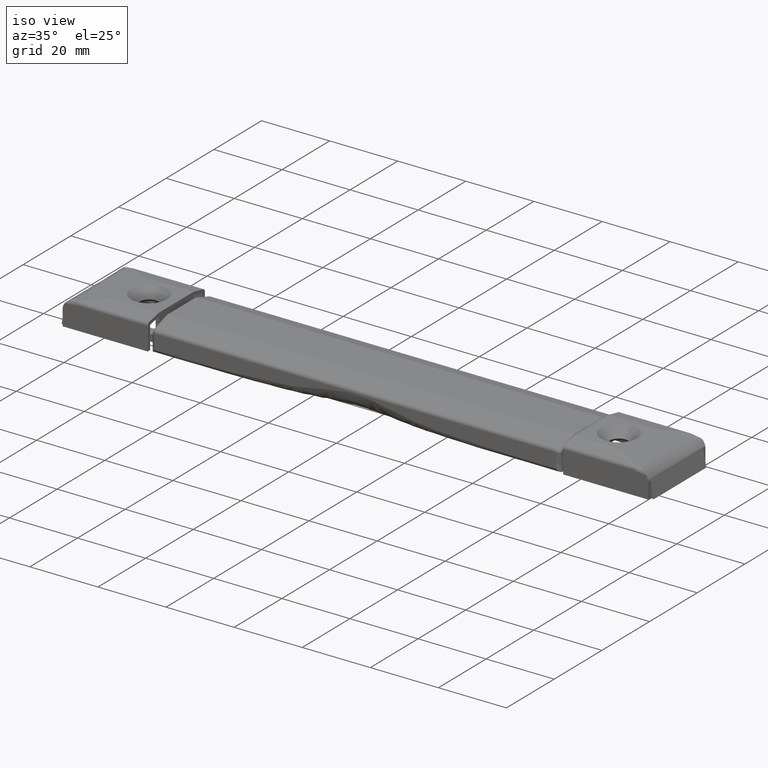
[diagram: clean part render]
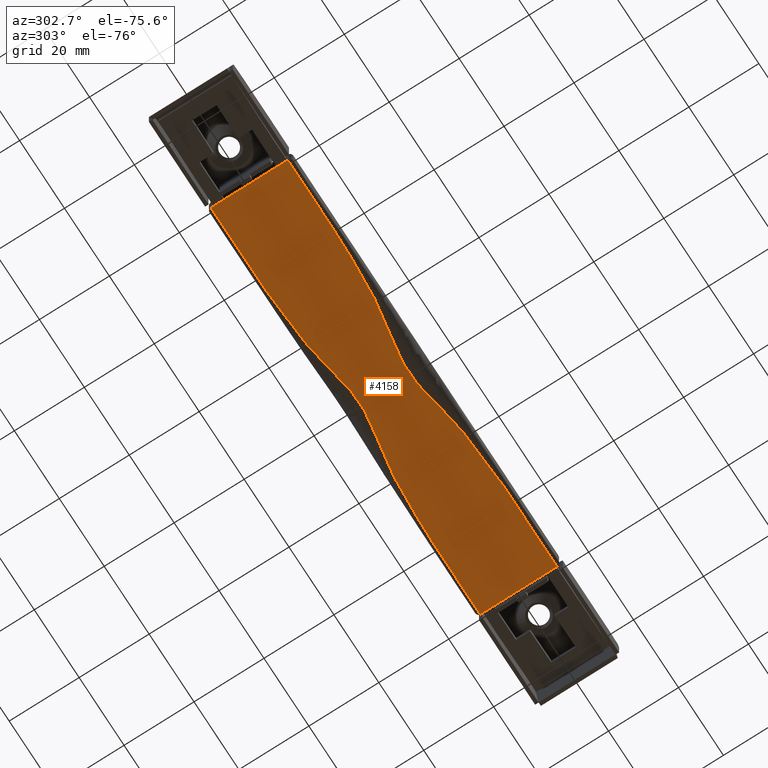
[diagram: tour spotlight — one face highlighted and labeled with its STEP entity id]
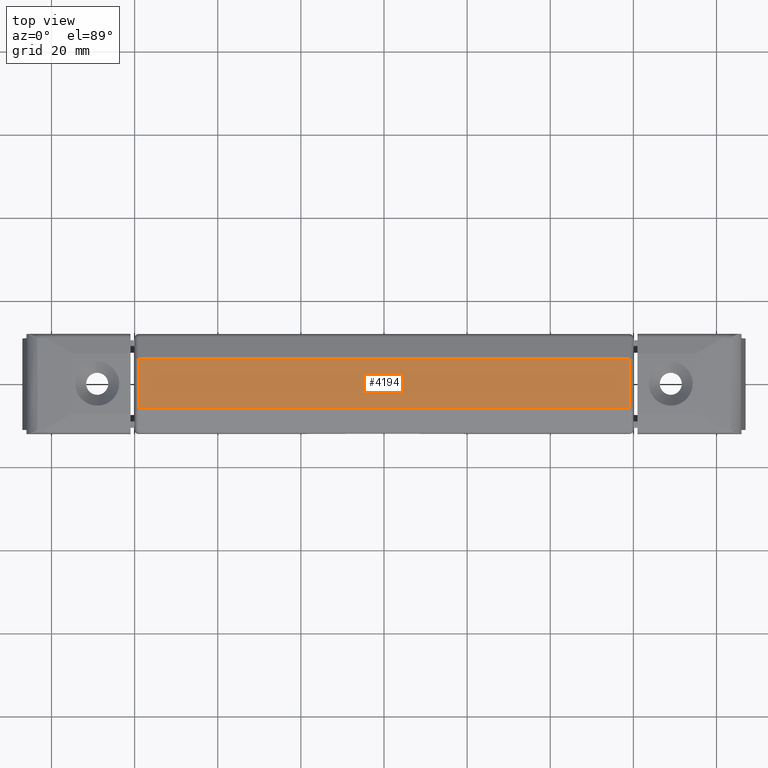
[diagram: tour spotlight — one face highlighted and labeled with its STEP entity id]
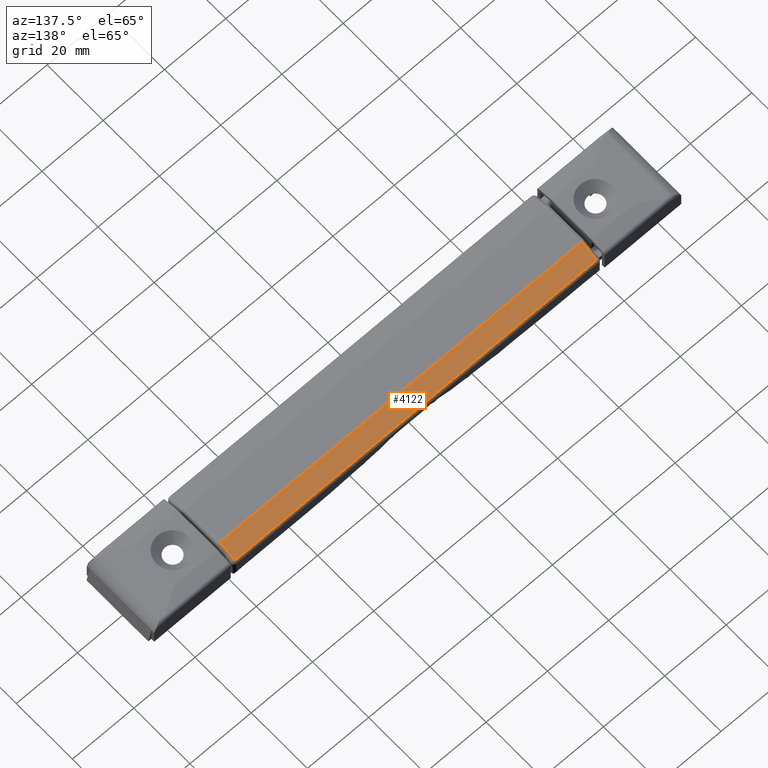
[diagram: tour spotlight — one face highlighted and labeled with its STEP entity id]
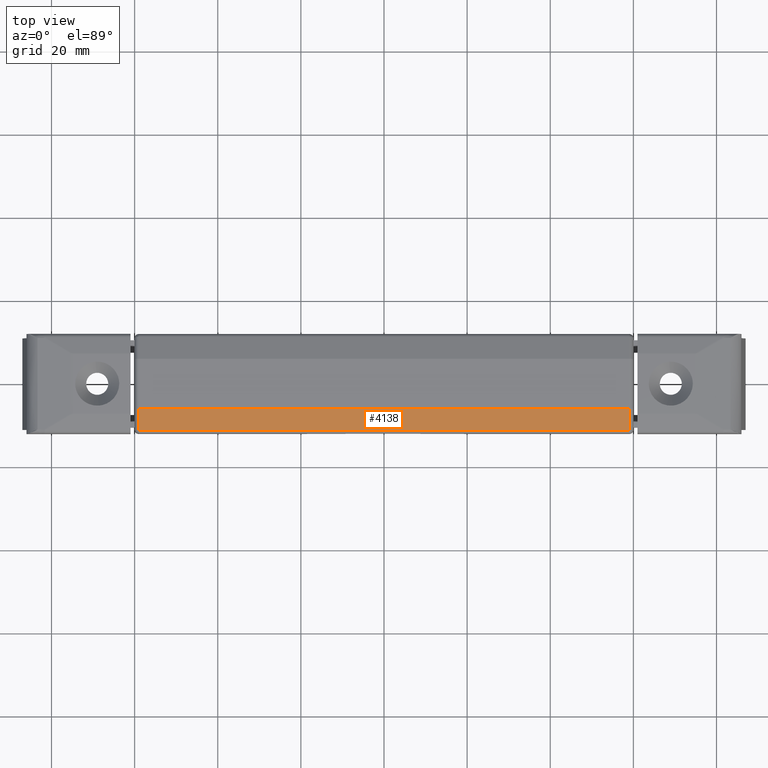
[diagram: tour spotlight — one face highlighted and labeled with its STEP entity id]
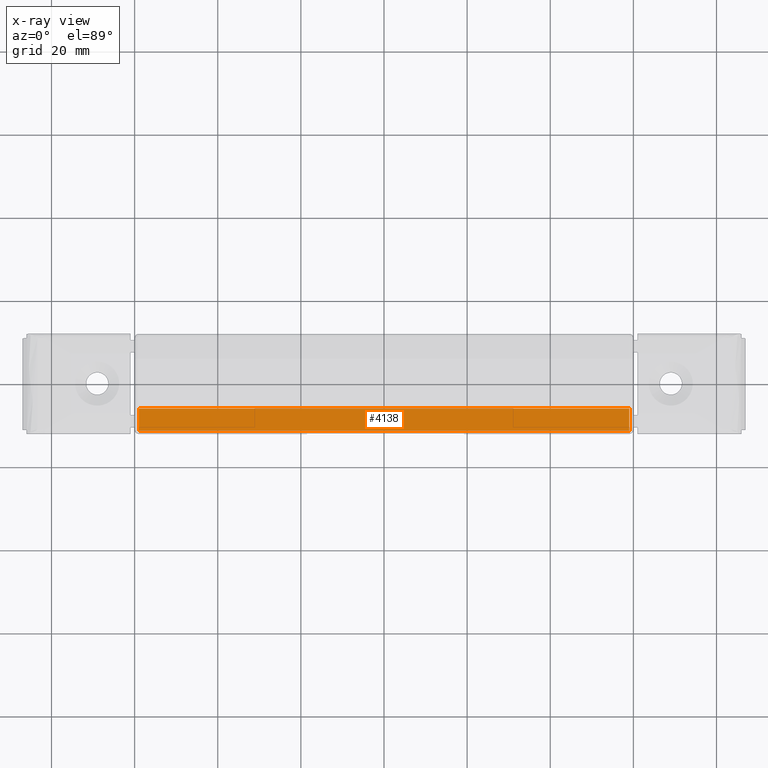
[diagram: x-ray of the same camera — body ghosted, this tour face saturated]
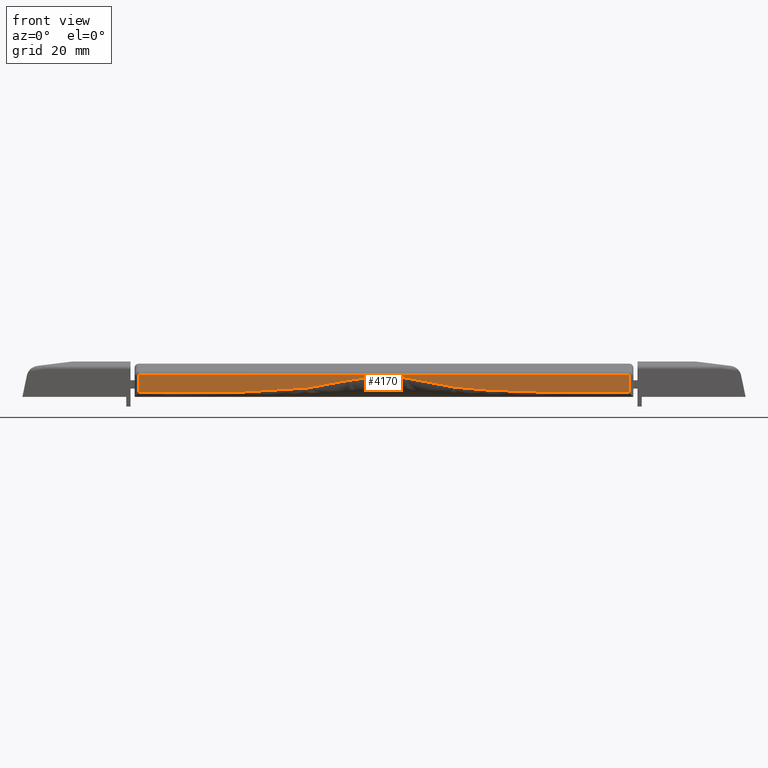
[diagram: tour spotlight — one face highlighted and labeled with its STEP entity id]
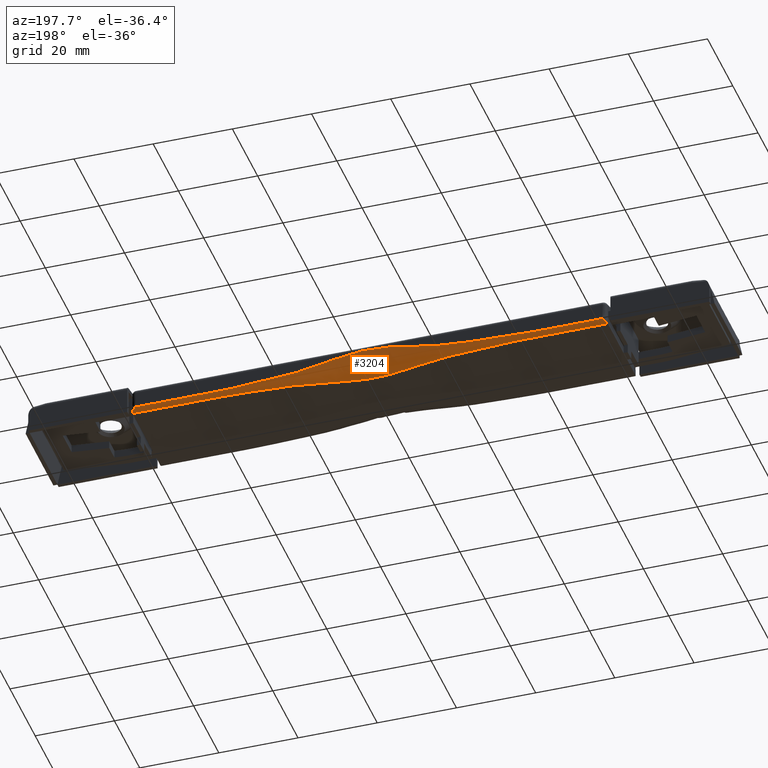
[diagram: tour spotlight — one face highlighted and labeled with its STEP entity id]
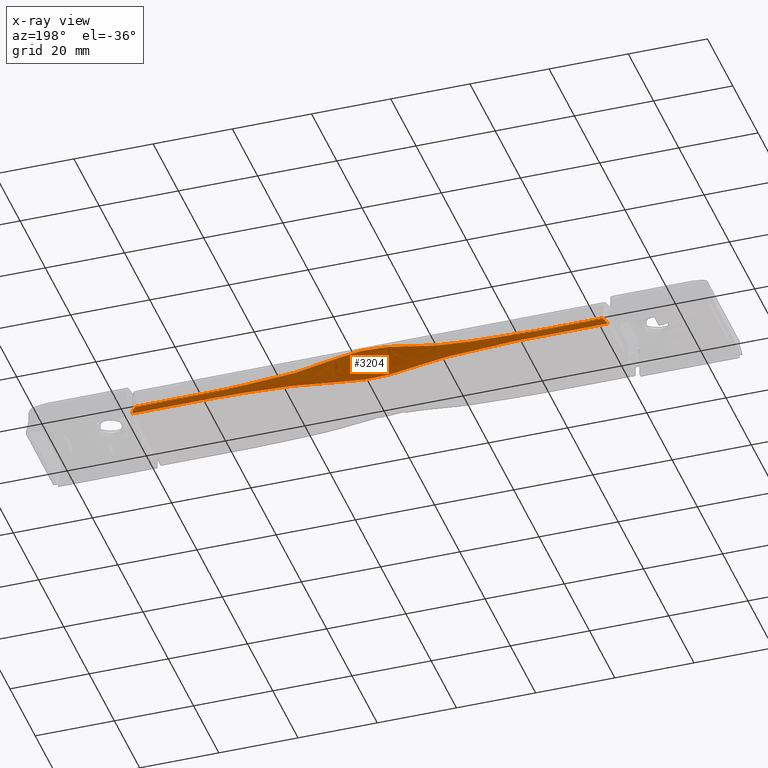
[diagram: x-ray of the same camera — body ghosted, this tour face saturated]
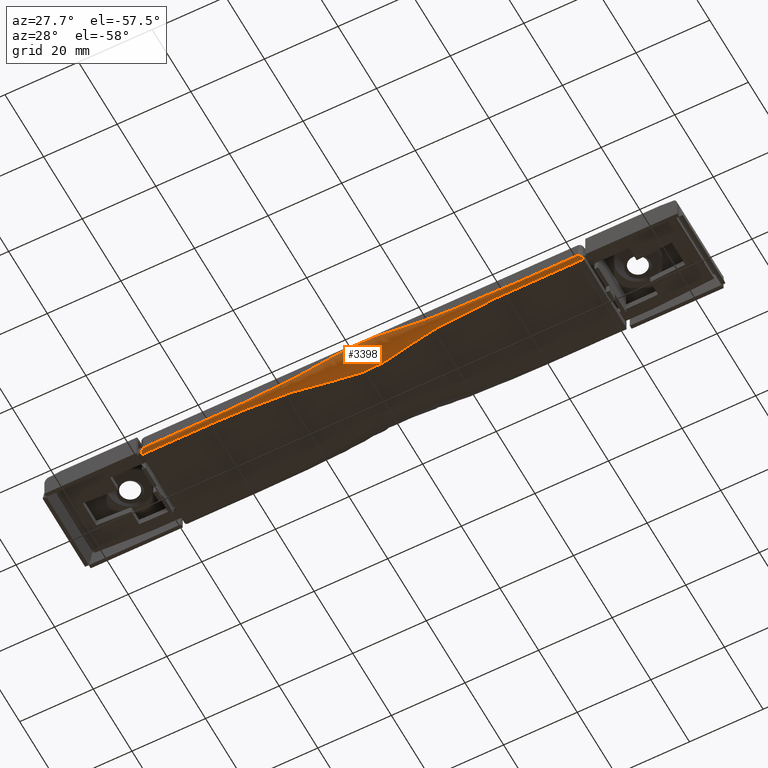
[diagram: tour spotlight — one face highlighted and labeled with its STEP entity id]
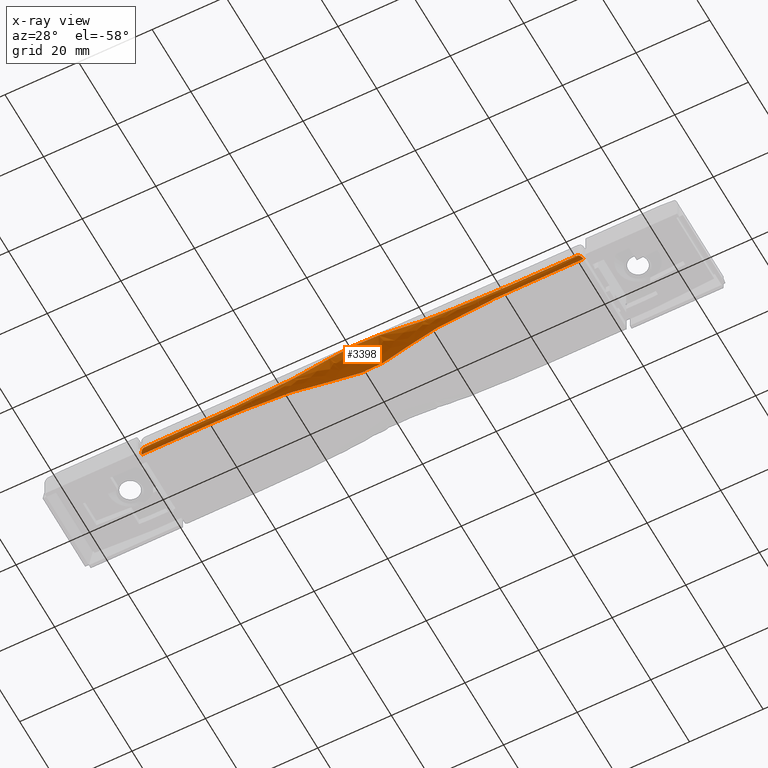
[diagram: x-ray of the same camera — body ghosted, this tour face saturated]
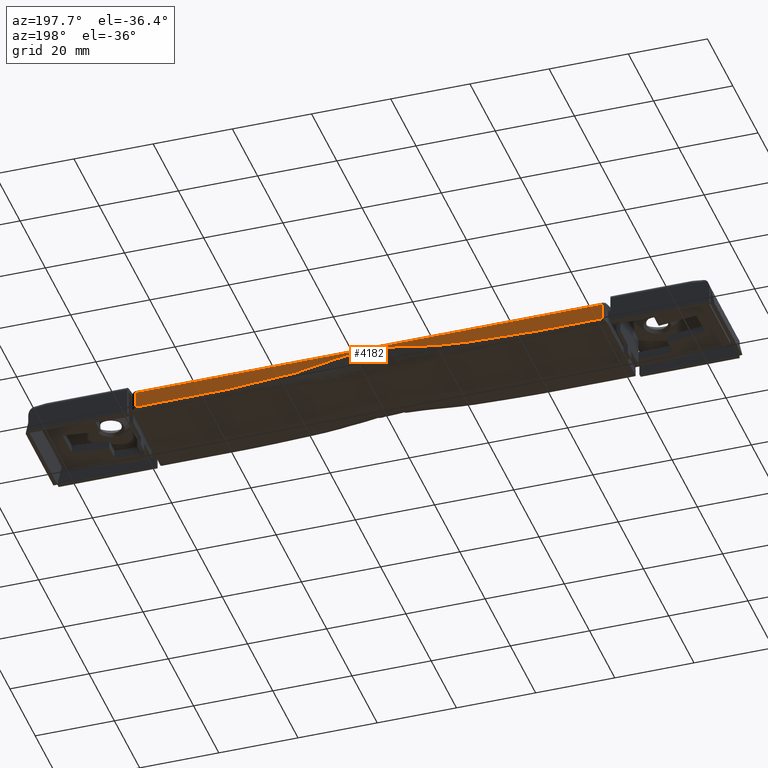
[diagram: tour spotlight — one face highlighted and labeled with its STEP entity id]
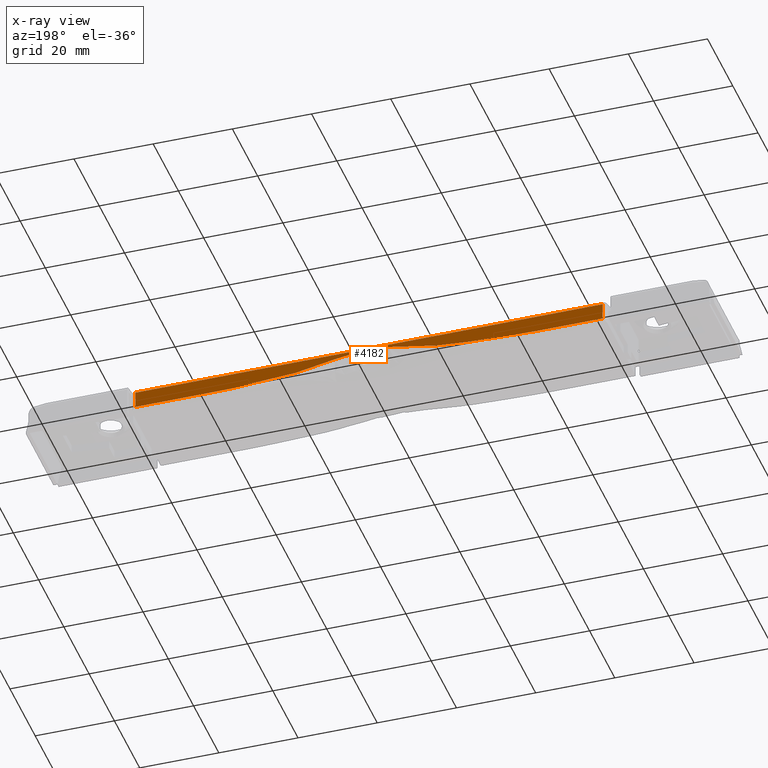
[diagram: x-ray of the same camera — body ghosted, this tour face saturated]
A machine part: a face-by-face anatomy tour. The part has 170 B-rep faces; the first image is the clean iso view, then the 8 largest visible faces are spotlighted one at a time (largest first), each with its STEP entity span.

Face 1 — auxiliary view, entity #4158. In plain terms, the highlighted face is a freeform B-spline surface patch.
Definition (entity closure, byte-faithful):
#3086=CARTESIAN_POINT('',(-59.999699999999997,11.000000000000201,0.0));
#3087=VERTEX_POINT('',#3086);
#3145=CARTESIAN_POINT('',(60.0,11.000000000000201,0.0));
#3146=VERTEX_POINT('',#3145);
#3180=CARTESIAN_POINT('',(-59.999700000000033,11.000000000000190,0.0));
#3181=CARTESIAN_POINT('',(-53.333050000000007,11.000000000000190,0.0));
#3182=CARTESIAN_POINT('',(-46.666400000000010,11.000000000000201,0.0));
#3183=CARTESIAN_POINT('',(-39.999749999999999,11.000000000000201,0.0));
#3184=CARTESIAN_POINT('',(-33.333100000000002,11.000000000000201,0.0));
#3185=CARTESIAN_POINT('',(-26.666450000000001,10.500000000000201,0.0));
#3186=CARTESIAN_POINT('',(-19.999800000000000,10.000000000000201,0.0));
#3187=CARTESIAN_POINT('',(-13.333150000000000,9.500000000000190,0.0));
#3188=CARTESIAN_POINT('',(-6.666500000000000,7.000000000000201,0.0));
#3189=CARTESIAN_POINT('',(0.000149999999980,7.000000000000201,0.0));
#3190=CARTESIAN_POINT('',(6.666799999999999,7.000000000000201,0.0));
#3191=CARTESIAN_POINT('',(13.333449999999999,9.500000000000199,0.0));
#3192=CARTESIAN_POINT('',(20.000100000000000,10.000000000000201,0.0));
#3193=CARTESIAN_POINT('',(26.666750000000000,10.500000000000201,0.0));
#3194=CARTESIAN_POINT('',(33.333399999999997,11.000000000000201,0.0));
#3195=CARTESIAN_POINT('',(40.000050000000002,11.000000000000201,0.0));
#3196=CARTESIAN_POINT('',(46.666699999999999,11.000000000000201,0.0));
#3197=CARTESIAN_POINT('',(53.333350000000003,11.000000000000201,0.0));
#3198=CARTESIAN_POINT('',(59.999999999999993,11.000000000000201,0.0));
#3199=B_SPLINE_CURVE_WITH_KNOTS('',3,(#3180,#3181,#3182,#3183,#3184,#3185,#3186,#3187,#3188,#3189,#3190,#3191,#3192,#3193,#3194,#3195,#3196,#3197,#3198),.UNSPECIFIED.,.F.,.U.,(4,3,3,3,3,3,4),(0.400000000000000,0.433333333333334,0.466666666666668,0.500000000000001,0.533333333333334,0.566666666666667,0.600000000000001),.UNSPECIFIED.);
#3200=EDGE_CURVE('',#3087,#3146,#3199,.T.);
#3280=CARTESIAN_POINT('',(60.0,-10.999999999999799,0.0));
#3281=VERTEX_POINT('',#3280);
#3339=CARTESIAN_POINT('',(-59.999699999999997,-10.999999999999799,0.0));
#3340=VERTEX_POINT('',#3339);
#3374=CARTESIAN_POINT('',(60.000000000000021,-10.999999999999799,0.0));
#3375=CARTESIAN_POINT('',(53.333350000000017,-10.999999999999799,0.0));
#3376=CARTESIAN_POINT('',(46.666700000000013,-10.999999999999799,0.0));
#3377=CARTESIAN_POINT('',(40.000050000000002,-10.999999999999799,0.0));
#3378=CARTESIAN_POINT('',(33.333399999999997,-10.999999999999799,0.0));
#3379=CARTESIAN_POINT('',(26.666750000000000,-10.499999999999799,0.0));
#3380=CARTESIAN_POINT('',(20.000100000000000,-9.999999999999799,0.0));
#3381=CARTESIAN_POINT('',(13.333449999999999,-9.499999999999801,0.0));
#3382=CARTESIAN_POINT('',(6.666799999999999,-6.999999999999800,0.0));
#3383=CARTESIAN_POINT('',(0.000149999999980,-6.999999999999800,0.0));
#3384=CARTESIAN_POINT('',(-6.666500000000000,-6.999999999999800,0.0));
#3385=CARTESIAN_POINT('',(-13.333150000000000,-9.499999999999801,0.0));
#3386=CARTESIAN_POINT('',(-19.999800000000000,-9.999999999999799,0.0));
#3387=CARTESIAN_POINT('',(-26.666450000000001,-10.499999999999799,0.0));
#3388=CARTESIAN_POINT('',(-33.333100000000002,-10.999999999999799,0.0));
#3389=CARTESIAN_POINT('',(-39.999749999999999,-10.999999999999799,0.0));
#3390=CARTESIAN_POINT('',(-46.666400000000010,-10.999999999999799,0.0));
#3391=CARTESIAN_POINT('',(-53.333050000000007,-10.999999999999799,0.0));
#3392=CARTESIAN_POINT('',(-59.999700000000033,-10.999999999999810,0.0));
#3393=B_SPLINE_CURVE_WITH_KNOTS('',3,(#3374,#3375,#3376,#3377,#3378,#3379,#3380,#3381,#3382,#3383,#3384,#3385,#3386,#3387,#3388,#3389,#3390,#3391,#3392),.UNSPECIFIED.,.F.,.U.,(4,3,3,3,3,3,4),(0.400000000000000,0.433333333333333,0.466666666666668,0.500000000000000,0.533333333333333,0.566666666666667,0.600000000000000),.UNSPECIFIED.);
#3394=EDGE_CURVE('',#3281,#3340,#3393,.T.);
#4139=CARTESIAN_POINT('',(-65.993683655946000,12.098899957359929,0.0));
#4140=CARTESIAN_POINT('',(65.993987947469648,12.098899957359929,0.0));
#4141=CARTESIAN_POINT('',(-65.993683655946000,-12.098900547445520,0.0));
#4142=CARTESIAN_POINT('',(65.993987947469648,-12.098900547445520,0.0));
#4143=B_SPLINE_SURFACE_WITH_KNOTS('',1,1,((#4139,#4141),(#4140,#4142)),.UNSPECIFIED.,.F.,.F.,.U.,(2,2),(2,2),(0.0,131.987671603415690),(0.0,24.197800504805450),.UNSPECIFIED.);
#4144=CARTESIAN_POINT('',(-59.999699999999997,-10.999999999999799,0.0));
#4145=CARTESIAN_POINT('',(-59.999699999999997,11.000000000000201,0.0));
#4146=QUASI_UNIFORM_CURVE('',1,(#4144,#4145),.UNSPECIFIED.,.F.,.U.);
#4147=EDGE_CURVE('',#3340,#3087,#4146,.T.);
#4148=ORIENTED_EDGE('',*,*,#4147,.T.);
#4149=ORIENTED_EDGE('',*,*,#3200,.T.);
#4150=CARTESIAN_POINT('',(60.0,11.000000000000201,0.0));
#4151=CARTESIAN_POINT('',(60.0,-10.999999999999799,0.0));
#4152=QUASI_UNIFORM_CURVE('',1,(#4150,#4151),.UNSPECIFIED.,.F.,.U.);
#4153=EDGE_CURVE('',#3146,#3281,#4152,.T.);
#4154=ORIENTED_EDGE('',*,*,#4153,.T.);
#4155=ORIENTED_EDGE('',*,*,#3394,.T.);
#4156=EDGE_LOOP('',(#4148,#4149,#4154,#4155));
#4157=FACE_OUTER_BOUND('',#4156,.T.);
#4158=ADVANCED_FACE('',(#4157),#4143,.T.);

Face 2 — top view, entity #4194. In plain terms, the highlighted face is a freeform B-spline surface patch.
Definition (entity closure, byte-faithful):
#3486=CARTESIAN_POINT('',(59.0,5.999999999999920,7.999999999999900));
#3487=VERTEX_POINT('',#3486);
#3530=CARTESIAN_POINT('',(59.0,-5.999999999999920,7.999999999999900));
#3531=VERTEX_POINT('',#3530);
#3553=CARTESIAN_POINT('',(59.0,-5.999999999999920,7.999999999999900));
#3554=CARTESIAN_POINT('',(59.0,5.999999999999920,7.999999999999900));
#3555=QUASI_UNIFORM_CURVE('',1,(#3553,#3554),.UNSPECIFIED.,.F.,.U.);
#3556=EDGE_CURVE('',#3531,#3487,#3555,.T.);
#3752=CARTESIAN_POINT('',(-58.999699999999997,-5.999999999999920,7.999999999999900));
#3753=VERTEX_POINT('',#3752);
#3799=CARTESIAN_POINT('',(-58.999699999999997,5.999999999999920,7.999999999999900));
#3800=VERTEX_POINT('',#3799);
#3824=CARTESIAN_POINT('',(-58.999699999999997,5.999999999999920,7.999999999999900));
#3825=CARTESIAN_POINT('',(-58.999699999999997,-5.999999999999920,7.999999999999900));
#3826=QUASI_UNIFORM_CURVE('',1,(#3824,#3825),.UNSPECIFIED.,.F.,.U.);
#3827=EDGE_CURVE('',#3800,#3753,#3826,.T.);
#4112=CARTESIAN_POINT('',(-58.999699999999997,5.999999999999920,7.999999999999900));
#4113=CARTESIAN_POINT('',(59.0,5.999999999999920,7.999999999999900));
#4114=QUASI_UNIFORM_CURVE('',1,(#4112,#4113),.UNSPECIFIED.,.F.,.U.);
#4115=EDGE_CURVE('',#3800,#3487,#4114,.T.);
#4130=CARTESIAN_POINT('',(-58.999699999999997,-5.999999999999920,7.999999999999900));
#4131=CARTESIAN_POINT('',(59.0,-5.999999999999920,7.999999999999900));
#4132=QUASI_UNIFORM_CURVE('',1,(#4130,#4131),.UNSPECIFIED.,.F.,.U.);
#4133=EDGE_CURVE('',#3753,#3531,#4132,.T.);
#4183=CARTESIAN_POINT('',(-64.893783678596947,6.599399976741584,7.999999999999900));
#4184=CARTESIAN_POINT('',(64.894087898595018,6.599399976741584,7.999999999999900));
#4185=CARTESIAN_POINT('',(-64.893783678596947,-6.599400298606665,7.999999999999900));
#4186=CARTESIAN_POINT('',(64.894087898595018,-6.599400298606665,7.999999999999900));
#4187=B_SPLINE_SURFACE_WITH_KNOTS('',1,1,((#4183,#4185),(#4184,#4186)),.UNSPECIFIED.,.F.,.F.,.U.,(2,2),(2,2),(0.0,129.787871577191990),(0.0,13.198800275348249),.UNSPECIFIED.);
#4188=ORIENTED_EDGE('',*,*,#4133,.T.);
#4189=ORIENTED_EDGE('',*,*,#3556,.T.);
#4190=ORIENTED_EDGE('',*,*,#4115,.F.);
#4191=ORIENTED_EDGE('',*,*,#3827,.T.);
#4192=EDGE_LOOP('',(#4188,#4189,#4190,#4191));
#4193=FACE_OUTER_BOUND('',#4192,.T.);
#4194=ADVANCED_FACE('',(#4193),#4187,.F.);

Face 3 — auxiliary view, entity #4122. In plain terms, the highlighted face is a freeform B-spline surface patch.
Definition (entity closure, byte-faithful):
#3440=CARTESIAN_POINT('',(59.0,11.316227766017040,6.227924077994191));
#3441=VERTEX_POINT('',#3440);
#3486=CARTESIAN_POINT('',(59.0,5.999999999999920,7.999999999999900));
#3487=VERTEX_POINT('',#3486);
#3488=CARTESIAN_POINT('',(59.0,5.999999999999920,7.999999999999900));
#3489=CARTESIAN_POINT('',(59.0,11.316227766017040,6.227924077994191));
#3490=QUASI_UNIFORM_CURVE('',1,(#3488,#3489),.UNSPECIFIED.,.F.,.U.);
#3491=EDGE_CURVE('',#3487,#3441,#3490,.T.);
#3799=CARTESIAN_POINT('',(-58.999699999999997,5.999999999999920,7.999999999999900));
#3800=VERTEX_POINT('',#3799);
#3846=CARTESIAN_POINT('',(-58.999699999999997,11.316227766017020,6.227924077994199));
#3847=VERTEX_POINT('',#3846);
#3869=CARTESIAN_POINT('',(-58.999699999999997,11.316227766017020,6.227924077994199));
#3870=CARTESIAN_POINT('',(-58.999699999999997,5.999999999999920,7.999999999999900));
#3871=QUASI_UNIFORM_CURVE('',1,(#3869,#3870),.UNSPECIFIED.,.F.,.U.);
#3872=EDGE_CURVE('',#3847,#3800,#3871,.T.);
#3947=CARTESIAN_POINT('',(59.0,11.316227766017040,6.227924077994191));
#3948=CARTESIAN_POINT('',(-58.999699999999997,11.316227766017020,6.227924077994199));
#3949=QUASI_UNIFORM_CURVE('',1,(#3947,#3948),.UNSPECIFIED.,.F.,.U.);
#3950=EDGE_CURVE('',#3441,#3847,#3949,.T.);
#4107=CARTESIAN_POINT('',(64.894084786293675,5.734454433391247,8.088515188869458));
#4108=CARTESIAN_POINT('',(64.894084786293675,11.581773475218061,6.139408841593856));
#4109=CARTESIAN_POINT('',(-64.893787951292296,5.734454433391246,8.088515188869458));
#4110=CARTESIAN_POINT('',(-64.893787951292296,11.581773475218061,6.139408841593856));
#4111=B_SPLINE_SURFACE_WITH_KNOTS('',1,1,((#4107,#4109),(#4108,#4110)),.UNSPECIFIED.,.F.,.F.,.U.,(2,2),(2,2),(0.0,6.163615459282029),(0.0,129.787872737586010),.UNSPECIFIED.);
#4112=CARTESIAN_POINT('',(-58.999699999999997,5.999999999999920,7.999999999999900));
#4113=CARTESIAN_POINT('',(59.0,5.999999999999920,7.999999999999900));
#4114=QUASI_UNIFORM_CURVE('',1,(#4112,#4113),.UNSPECIFIED.,.F.,.U.);
#4115=EDGE_CURVE('',#3800,#3487,#4114,.T.);
#4116=ORIENTED_EDGE('',*,*,#4115,.T.);
#4117=ORIENTED_EDGE('',*,*,#3491,.T.);
#4118=ORIENTED_EDGE('',*,*,#3950,.T.);
#4119=ORIENTED_EDGE('',*,*,#3872,.T.);
#4120=EDGE_LOOP('',(#4116,#4117,#4118,#4119));
#4121=FACE_OUTER_BOUND('',#4120,.T.);
#4122=ADVANCED_FACE('',(#4121),#4111,.T.);

Face 4 — top view, entity #4138. An x-ray twin of the same camera follows (body ghosted, this face saturated) — the face is partly hidden behind the body. In plain terms, the highlighted face is a freeform B-spline surface patch.
Definition (entity closure, byte-faithful):
#3530=CARTESIAN_POINT('',(59.0,-5.999999999999920,7.999999999999900));
#3531=VERTEX_POINT('',#3530);
#3575=CARTESIAN_POINT('',(59.0,-11.316227766016620,6.227924077994330));
#3576=VERTEX_POINT('',#3575);
#3600=CARTESIAN_POINT('',(59.0,-11.316227766016620,6.227924077994330));
#3601=CARTESIAN_POINT('',(59.0,-5.999999999999920,7.999999999999900));
#3602=QUASI_UNIFORM_CURVE('',1,(#3600,#3601),.UNSPECIFIED.,.F.,.U.);
#3603=EDGE_CURVE('',#3576,#3531,#3602,.T.);
#3705=CARTESIAN_POINT('',(-58.999699999999997,-11.316227766016640,6.227924077994319));
#3706=VERTEX_POINT('',#3705);
#3752=CARTESIAN_POINT('',(-58.999699999999997,-5.999999999999920,7.999999999999900));
#3753=VERTEX_POINT('',#3752);
#3777=CARTESIAN_POINT('',(-58.999699999999997,-5.999999999999920,7.999999999999900));
#3778=CARTESIAN_POINT('',(-58.999699999999997,-11.316227766016640,6.227924077994319));
#3779=QUASI_UNIFORM_CURVE('',1,(#3777,#3778),.UNSPECIFIED.,.F.,.U.);
#3780=EDGE_CURVE('',#3753,#3706,#3779,.T.);
#3982=CARTESIAN_POINT('',(-58.999699999999997,-11.316227766016640,6.227924077994319));
#3983=CARTESIAN_POINT('',(59.0,-11.316227766016620,6.227924077994330));
#3984=QUASI_UNIFORM_CURVE('',1,(#3982,#3983),.UNSPECIFIED.,.F.,.U.);
#3985=EDGE_CURVE('',#3706,#3576,#3984,.T.);
#4123=CARTESIAN_POINT('',(-64.893783678596947,-5.734454433391266,8.088515188869451));
#4124=CARTESIAN_POINT('',(-64.893783678596947,-11.581773475217640,6.139408841593994));
#4125=CARTESIAN_POINT('',(64.894087898595018,-5.734454433391266,8.088515188869451));
#4126=CARTESIAN_POINT('',(64.894087898595018,-11.581773475217640,6.139408841593994));
#4127=B_SPLINE_SURFACE_WITH_KNOTS('',1,1,((#4123,#4125),(#4124,#4126)),.UNSPECIFIED.,.F.,.F.,.U.,(2,2),(2,2),(0.0,6.163615459281569),(0.0,129.787871577191990),.UNSPECIFIED.);
#4128=ORIENTED_EDGE('',*,*,#3985,.T.);
#4129=ORIENTED_EDGE('',*,*,#3603,.T.);
#4130=CARTESIAN_POINT('',(-58.999699999999997,-5.999999999999920,7.999999999999900));
#4131=CARTESIAN_POINT('',(59.0,-5.999999999999920,7.999999999999900));
#4132=QUASI_UNIFORM_CURVE('',1,(#4130,#4131),.UNSPECIFIED.,.F.,.U.);
#4133=EDGE_CURVE('',#3753,#3531,#4132,.T.);
#4134=ORIENTED_EDGE('',*,*,#4133,.F.);
#4135=ORIENTED_EDGE('',*,*,#3780,.T.);
#4136=EDGE_LOOP('',(#4128,#4129,#4134,#4135));
#4137=FACE_OUTER_BOUND('',#4136,.T.);
#4138=ADVANCED_FACE('',(#4137),#4127,.T.);

Face 5 — front view, entity #4170. In plain terms, the highlighted face is a freeform B-spline surface patch.
Definition (entity closure, byte-faithful):
#3278=CARTESIAN_POINT('',(59.0,-11.999999999999799,1.0));
#3279=VERTEX_POINT('',#3278);
#3315=CARTESIAN_POINT('',(-58.999699999999997,-11.999999999999799,1.0));
#3316=VERTEX_POINT('',#3315);
#3317=CARTESIAN_POINT('',(-58.999700000000018,-11.999999999999810,1.0));
#3318=CARTESIAN_POINT('',(-52.666383333333343,-11.999999999999799,1.0));
#3319=CARTESIAN_POINT('',(-46.333066666666667,-11.999999999999799,1.0));
#3320=CARTESIAN_POINT('',(-39.999749999999999,-11.999999999999799,1.0));
#3321=CARTESIAN_POINT('',(-33.333100000000002,-11.999999999999799,1.0));
#3322=CARTESIAN_POINT('',(-26.666450000000001,-11.999999999999799,1.500000000000000));
#3323=CARTESIAN_POINT('',(-19.999800000000000,-11.999999999999799,2.0));
#3324=CARTESIAN_POINT('',(-13.333150000000000,-11.999999999999799,2.500000000000000));
#3325=CARTESIAN_POINT('',(-6.666500000000000,-11.999999999999799,5.0));
#3326=CARTESIAN_POINT('',(0.000149999999981,-11.999999999999799,5.0));
#3327=CARTESIAN_POINT('',(6.666799999999999,-11.999999999999799,5.0));
#3328=CARTESIAN_POINT('',(13.333449999999999,-11.999999999999799,2.500000000000000));
#3329=CARTESIAN_POINT('',(20.000100000000000,-11.999999999999799,2.0));
#3330=CARTESIAN_POINT('',(26.666750000000000,-11.999999999999799,1.500000000000000));
#3331=CARTESIAN_POINT('',(33.333399999999997,-11.999999999999799,1.0));
#3332=CARTESIAN_POINT('',(40.000050000000002,-11.999999999999799,1.0));
#3333=CARTESIAN_POINT('',(46.333366666666663,-11.999999999999799,1.0));
#3334=CARTESIAN_POINT('',(52.666683333333310,-11.999999999999799,1.0));
#3335=CARTESIAN_POINT('',(58.999999999999972,-11.999999999999799,1.0));
#3336=B_SPLINE_CURVE_WITH_KNOTS('',3,(#3317,#3318,#3319,#3320,#3321,#3322,#3323,#3324,#3325,#3326,#3327,#3328,#3329,#3330,#3331,#3332,#3333,#3334,#3335),.UNSPECIFIED.,.F.,.U.,(4,3,3,3,3,3,4),(0.401666670833344,0.433333333333334,0.466666666666667,0.500000000000000,0.533333333333333,0.566666666666667,0.598333329166657),.UNSPECIFIED.);
#3337=EDGE_CURVE('',#3316,#3279,#3336,.T.);
#3633=CARTESIAN_POINT('',(59.0,-11.999999999999799,5.279240779943800));
#3634=VERTEX_POINT('',#3633);
#3688=CARTESIAN_POINT('',(-58.999699999999997,-11.999999999999799,5.279240779943800));
#3689=VERTEX_POINT('',#3688);
#3976=CARTESIAN_POINT('',(59.0,-11.999999999999799,5.279240779943800));
#3977=CARTESIAN_POINT('',(-58.999699999999997,-11.999999999999799,5.279240779943800));
#3978=QUASI_UNIFORM_CURVE('',1,(#3976,#3977),.UNSPECIFIED.,.F.,.U.);
#3979=EDGE_CURVE('',#3634,#3689,#3978,.T.);
#4011=CARTESIAN_POINT('',(-58.999699999999997,-11.999999999999799,5.279240779943800));
#4012=CARTESIAN_POINT('',(-58.999699999999997,-11.999999999999799,1.0));
#4013=QUASI_UNIFORM_CURVE('',1,(#4011,#4012),.UNSPECIFIED.,.F.,.U.);
#4014=EDGE_CURVE('',#3689,#3316,#4013,.T.);
#4034=CARTESIAN_POINT('',(59.0,-11.999999999999799,1.0));
#4035=CARTESIAN_POINT('',(59.0,-11.999999999999799,5.279240779943800));
#4036=QUASI_UNIFORM_CURVE('',1,(#4034,#4035),.UNSPECIFIED.,.F.,.U.);
#4037=EDGE_CURVE('',#3279,#3634,#4036,.T.);
#4159=CARTESIAN_POINT('',(-64.893783678596947,-11.999999999999799,0.786251946624261));
#4160=CARTESIAN_POINT('',(64.894087898595018,-11.999999999999799,0.786251946624261));
#4161=CARTESIAN_POINT('',(-64.893783678596947,-11.999999999999799,5.492988642022571));
#4162=CARTESIAN_POINT('',(64.894087898595018,-11.999999999999799,5.492988642022570));
#4163=B_SPLINE_SURFACE_WITH_KNOTS('',1,1,((#4159,#4161),(#4160,#4162)),.UNSPECIFIED.,.F.,.F.,.U.,(2,2),(2,2),(0.0,129.787871577191990),(0.0,4.706736695398310),.UNSPECIFIED.);
#4164=ORIENTED_EDGE('',*,*,#4014,.T.);
#4165=ORIENTED_EDGE('',*,*,#3337,.T.);
#4166=ORIENTED_EDGE('',*,*,#4037,.T.);
#4167=ORIENTED_EDGE('',*,*,#3979,.T.);
#4168=EDGE_LOOP('',(#4164,#4165,#4166,#4167));
#4169=FACE_OUTER_BOUND('',#4168,.T.);
#4170=ADVANCED_FACE('',(#4169),#4163,.T.);

Face 6 — auxiliary view, entity #3204. An x-ray twin of the same camera follows (body ghosted, this face saturated) — the face is partly hidden behind the body. In plain terms, the highlighted face is a freeform B-spline surface patch.
Definition (entity closure, byte-faithful):
#3011=CARTESIAN_POINT('',(60.719998199999949,12.000000000000204,1.007074323590214));
#3012=CARTESIAN_POINT('',(60.719998199999985,12.000000000000210,1.003542351837853));
#3013=CARTESIAN_POINT('',(60.719998199999957,12.000000000000204,0.0));
#3014=CARTESIAN_POINT('',(60.719998199999985,10.996456591568528,0.0));
#3015=CARTESIAN_POINT('',(60.719998200000006,10.992923569410948,0.0));
#3016=CARTESIAN_POINT('',(53.813348799999950,12.000000000000194,1.007074323590214));
#3017=CARTESIAN_POINT('',(53.813348799999964,12.000000000000199,1.003542351837853));
#3018=CARTESIAN_POINT('',(53.813348799999936,12.000000000000204,0.0));
#3019=CARTESIAN_POINT('',(53.813348799999979,10.996456591568517,0.0));
#3020=CARTESIAN_POINT('',(53.813348799999993,10.992923569410948,0.0));
#3021=CARTESIAN_POINT('',(46.906699399999972,12.000000000000194,1.007074323590214));
#3022=CARTESIAN_POINT('',(46.906699399999987,12.000000000000199,1.003542351837853));
#3023=CARTESIAN_POINT('',(46.906699399999880,12.000000000000204,0.0));
#3024=CARTESIAN_POINT('',(46.906699399999987,10.996456591568517,0.0));
#3025=CARTESIAN_POINT('',(46.906699400000001,10.992923569410948,0.0));
#3026=CARTESIAN_POINT('',(33.333399999999983,12.000000000000194,1.007074323590215));
#3027=CARTESIAN_POINT('',(33.333399999999990,12.000000000000188,1.003542351837853));
#3028=CARTESIAN_POINT('',(33.333399999999969,12.000000000000201,0.0));
#3029=CARTESIAN_POINT('',(33.333400000000005,10.996456591568517,0.0));
#3030=CARTESIAN_POINT('',(33.333399999999997,10.992923569410937,0.0));
#3031=CARTESIAN_POINT('',(26.666750000000004,12.000000000000194,1.510611485385319));
#3032=CARTESIAN_POINT('',(26.666750000000008,12.000000000000199,1.505313527756777));
#3033=CARTESIAN_POINT('',(26.666749999999972,12.000000000000188,0.0));
#3034=CARTESIAN_POINT('',(26.666750000000025,10.494684887352669,0.0));
#3035=CARTESIAN_POINT('',(26.666750000000032,10.489385354116312,0.0));
#3036=CARTESIAN_POINT('',(13.333450000000010,12.000000000000194,2.517685808975533));
#3037=CARTESIAN_POINT('',(13.333450000000012,12.000000000000199,2.508855879594631));
#3038=CARTESIAN_POINT('',(13.333449999999974,12.000000000000187,0.0));
#3039=CARTESIAN_POINT('',(13.333450000000019,9.491141478920985,0.0));
#3040=CARTESIAN_POINT('',(13.333450000000020,9.482308923527047,0.0));
#3041=CARTESIAN_POINT('',(0.000149999999989,12.000000000000194,7.553057426926606));
#3042=CARTESIAN_POINT('',(0.000149999999987,12.000000000000199,7.526567638783893));
#3043=CARTESIAN_POINT('',(0.000149999999976,12.000000000000197,0.0));
#3044=CARTESIAN_POINT('',(0.000149999999989,4.473424436762564,0.0));
#3045=CARTESIAN_POINT('',(0.000149999999986,4.446926770580741,0.0));
#3046=CARTESIAN_POINT('',(-13.333150000000026,12.000000000000194,2.517685808975532));
#3047=CARTESIAN_POINT('',(-13.333150000000034,12.000000000000199,2.508855879594632));
#3048=CARTESIAN_POINT('',(-13.333150000000028,12.000000000000185,0.0));
#3049=CARTESIAN_POINT('',(-13.333150000000035,9.491141478920985,0.0));
#3050=CARTESIAN_POINT('',(-13.333150000000034,9.482308923527041,0.0));
#3051=CARTESIAN_POINT('',(-26.666450000000022,12.000000000000194,1.510611485385318));
#3052=CARTESIAN_POINT('',(-26.666450000000030,12.000000000000199,1.505313527756775));
#3053=CARTESIAN_POINT('',(-26.666450000000008,12.000000000000188,0.0));
#3054=CARTESIAN_POINT('',(-26.666450000000037,10.494684887352680,0.0));
#3055=CARTESIAN_POINT('',(-26.666450000000044,10.489385354116312,0.0));
#3056=CARTESIAN_POINT('',(-33.333099999999945,12.000000000000194,1.007074323590214));
#3057=CARTESIAN_POINT('',(-33.333099999999959,12.000000000000199,1.003542351837853));
#3058=CARTESIAN_POINT('',(-33.333099999999924,12.000000000000176,0.0));
#3059=CARTESIAN_POINT('',(-33.333099999999966,10.996456591568517,0.0));
#3060=CARTESIAN_POINT('',(-33.333099999999973,10.992923569410937,0.0));
#3061=CARTESIAN_POINT('',(-46.906399399999977,12.000000000000194,1.007074323590214));
#3062=CARTESIAN_POINT('',(-46.906399399999998,12.000000000000199,1.003542351837853));
#3063=CARTESIAN_POINT('',(-46.906399399999955,12.000000000000176,0.0));
#3064=CARTESIAN_POINT('',(-46.906399400000005,10.996456591568517,0.0));
#3065=CARTESIAN_POINT('',(-46.906399400000019,10.992923569410937,0.0));
#3066=CARTESIAN_POINT('',(-53.813048800000040,12.000000000000185,1.007074323590214));
#3067=CARTESIAN_POINT('',(-53.813048800000061,12.000000000000199,1.003542351837853));
#3068=CARTESIAN_POINT('',(-53.813048800000047,12.000000000000176,0.0));
#3069=CARTESIAN_POINT('',(-53.813048800000075,10.996456591568508,0.0));
#3070=CARTESIAN_POINT('',(-53.813048800000082,10.992923569410937,0.0));
#3071=CARTESIAN_POINT('',(-60.719698200000067,12.000000000000185,1.007074323590214));
#3072=CARTESIAN_POINT('',(-60.719698200000096,12.000000000000188,1.003542351837853));
#3073=CARTESIAN_POINT('',(-60.719698200000053,12.000000000000172,0.0));
#3074=CARTESIAN_POINT('',(-60.719698200000103,10.996456591568508,0.0));
#3075=CARTESIAN_POINT('',(-60.719698200000117,10.992923569410928,0.0));
#3083=(BOUNDED_SURFACE()B_SPLINE_SURFACE(2,3,((#3011,#3016,#3021,#3026,#3031,#3036,#3041,#3046,#3051,#3056,#3061,#3066,#3071),(#3012,#3017,#3022,#3027,#3032,#3037,#3042,#3047,#3052,#3057,#3062,#3067,#3072),(#3013,#3018,#3023,#3028,#3033,#3038,#3043,#3048,#3053,#3058,#3063,#3068,#3073),(#3014,#3019,#3024,#3029,#3034,#3039,#3044,#3049,#3054,#3059,#3064,#3069,#3074),(#3015,#3020,#3025,#3030,#3035,#3040,#3045,#3050,#3055,#3060,#3065,#3070,#3075)),.UNSPECIFIED.,.F.,.F.,.U.)B_SPLINE_SURFACE_WITH_KNOTS((3,1,1,3),(4,2,2,1,2,2,4),(0.0,0.041562217111113,8.325833464573007,8.367408096862903),(0.0,21.130286070252279,41.526315095592302,61.922344120932017,82.318373146271725,102.714402171612090,123.844688241864300),.UNSPECIFIED.)GEOMETRIC_REPRESENTATION_ITEM()RATIONAL_B_SPLINE_SURFACE(((1.002938892556042,1.002938892556042,1.002938892556042,1.002938892556042,1.002938892556042,1.002938892556042,1.002938892556042,1.002938892556042,1.002938892556042,1.002938892556042,1.002938892556042,1.002938892556042,1.002938892556042),(1.001469446278021,1.001469446278021,1.001469446278021,1.001469446278021,1.001469446278021,1.001469446278021,1.001469446278021,1.001469446278021,1.001469446278021,1.001469446278021,1.001469446278021,1.001469446278021,1.001469446278021),(0.707106781186548,0.707106781186548,0.707106781186548,0.707106781186548,0.707106781186548,0.707106781186548,0.707106781186548,0.707106781186548,0.707106781186548,0.707106781186548,0.707106781186548,0.707106781186548,0.707106781186548),(1.001469885220876,1.001469885220876,1.001469885220876,1.001469885220876,1.001469885220876,1.001469885220876,1.001469885220876,1.001469885220876,1.001469885220876,1.001469885220876,1.001469885220876,1.001469885220876,1.001469885220876),(1.002939770441752,1.002939770441752,1.002939770441752,1.002939770441752,1.002939770441752,1.002939770441752,1.002939770441752,1.002939770441752,1.002939770441752,1.002939770441752,1.002939770441752,1.002939770441752,1.002939770441752)))REPRESENTATION_ITEM('')SURFACE());
#3084=CARTESIAN_POINT('',(-58.999699999999997,12.000000000000201,1.0));
#3085=VERTEX_POINT('',#3084);
#3086=CARTESIAN_POINT('',(-59.999699999999997,11.000000000000201,0.0));
#3087=VERTEX_POINT('',#3086);
#3088=CARTESIAN_POINT('',(-58.999699999999997,12.000000000000201,1.0));
#3089=CARTESIAN_POINT('',(-59.013714783611853,12.000000000000201,0.985985216389852));
#3090=CARTESIAN_POINT('',(-59.027912647984003,11.999701371311041,0.971787352016194));
#3091=CARTESIAN_POINT('',(-59.056085658948767,11.998508609263011,0.943614341051322));
#3092=CARTESIAN_POINT('',(-59.070146127434839,11.997615019168340,0.929553872565253));
#3093=CARTESIAN_POINT('',(-59.112249658708294,11.994045324764789,0.887450341291756));
#3094=CARTESIAN_POINT('',(-59.140214987997311,11.990481902252260,0.859485012002772));
#3095=CARTESIAN_POINT('',(-59.223796763431288,11.976204938925701,0.775903236568772));
#3096=CARTESIAN_POINT('',(-59.279101775808641,11.961936420440960,0.720598224191399));
#3097=CARTESIAN_POINT('',(-59.388803445773661,11.923030626676500,0.610896554226360));
#3098=CARTESIAN_POINT('',(-59.442240172927271,11.898730927803600,0.557459827072726));
#3099=CARTESIAN_POINT('',(-59.545954074043607,11.839741371992570,0.453745925956409));
#3100=CARTESIAN_POINT('',(-59.596257023299188,11.805069826705010,0.403442976700764));
#3101=CARTESIAN_POINT('',(-59.668914419112411,11.743744908037540,0.330785580887529));
#3102=CARTESIAN_POINT('',(-59.692699139062313,11.721677316646151,0.307000860937660));
#3103=CARTESIAN_POINT('',(-59.738297181368971,11.674937152464221,0.261402818631004));
#3104=CARTESIAN_POINT('',(-59.760224634792692,11.650178890669640,0.239475365207292));
#3105=CARTESIAN_POINT('',(-59.802176096321212,11.597630675946281,0.197523903678777));
#3106=CARTESIAN_POINT('',(-59.822201458517902,11.569842879732180,0.177498541482092));
#3107=CARTESIAN_POINT('',(-59.860095364947377,11.510832039737741,0.139604635052636));
#3108=CARTESIAN_POINT('',(-59.878052394147389,11.479402695846650,0.121647605852634));
#3109=CARTESIAN_POINT('',(-59.910638028717443,11.414151881470740,0.089061971282534));
#3110=CARTESIAN_POINT('',(-59.925355703289164,11.380235252622059,0.074344296710808));
#3111=CARTESIAN_POINT('',(-59.944832476583002,11.327229176266730,0.054867523416968));
#3112=CARTESIAN_POINT('',(-59.950890183088433,11.309204261189000,0.048809816911613));
#3113=CARTESIAN_POINT('',(-59.962078048209122,11.272394074580211,0.037621951790916));
#3114=CARTESIAN_POINT('',(-59.967221926162019,11.253537671342610,0.032478073837972));
#3115=CARTESIAN_POINT('',(-59.990087526207247,11.158786026581090,0.009612473792741));
#3116=CARTESIAN_POINT('',(-59.999700000000011,11.080673024986680,0.0));
#3117=CARTESIAN_POINT('',(-59.999699999999997,11.000000000000179,0.0));
#3118=B_SPLINE_CURVE_WITH_KNOTS('',3,(#3088,#3089,#3090,#3091,#3092,#3093,#3094,#3095,#3096,#3097,#3098,#3099,#3100,#3101,#3102,#3103,#3104,#3105,#3106,#3107,#3108,#3109,#3110,#3111,#3112,#3113,#3114,#3115,#3116,#3117),.UNSPECIFIED.,.F.,.U.,(4,2,2,2,2,2,2,2,2,2,2,2,2,2,4),(0.0,0.031250000000000,0.062499999999999,0.124999999999999,0.249999999999997,0.374999999999996,0.499999999999995,0.562499999999994,0.624999999999994,0.687499999999993,0.749999999999993,0.812499999999992,0.843749999999993,0.874999999999994,1.0),.UNSPECIFIED.);
#3119=EDGE_CURVE('',#3085,#3087,#3118,.T.);
#3120=ORIENTED_EDGE('',*,*,#3119,.F.);
#3121=CARTESIAN_POINT('',(59.0,12.000000000000201,1.0));
#3122=VERTEX_POINT('',#3121);
#3123=CARTESIAN_POINT('',(59.000000000000007,12.000000000000201,1.0));
#3124=CARTESIAN_POINT('',(52.666683333333339,12.000000000000201,1.0));
#3125=CARTESIAN_POINT('',(46.333366666666677,12.000000000000201,1.0));
#3126=CARTESIAN_POINT('',(40.000050000000002,12.000000000000201,1.0));
#3127=CARTESIAN_POINT('',(33.333399999999997,12.000000000000201,1.0));
#3128=CARTESIAN_POINT('',(26.666750000000000,12.000000000000201,1.500000000000000));
#3129=CARTESIAN_POINT('',(20.000100000000000,12.000000000000201,2.0));
#3130=CARTESIAN_POINT('',(13.333449999999999,12.000000000000201,2.500000000000000));
#3131=CARTESIAN_POINT('',(6.666799999999999,12.000000000000201,5.0));
#3132=CARTESIAN_POINT('',(0.000149999999979,12.000000000000201,5.0));
#3133=CARTESIAN_POINT('',(-6.666500000000000,12.000000000000201,5.0));
#3134=CARTESIAN_POINT('',(-13.333150000000000,12.000000000000201,2.500000000000000));
#3135=CARTESIAN_POINT('',(-19.999800000000000,12.000000000000201,2.0));
#3136=CARTESIAN_POINT('',(-26.666450000000001,12.000000000000201,1.500000000000000));
#3137=CARTESIAN_POINT('',(-33.333100000000002,12.000000000000201,1.0));
#3138=CARTESIAN_POINT('',(-39.999749999999999,12.000000000000201,1.0));
#3139=CARTESIAN_POINT('',(-46.333066666666660,12.000000000000201,1.0));
#3140=CARTESIAN_POINT('',(-52.666383333333307,12.000000000000190,1.0));
#3141=CARTESIAN_POINT('',(-58.999699999999983,12.000000000000190,1.0));
#3142=B_SPLINE_CURVE_WITH_KNOTS('',3,(#3123,#3124,#3125,#3126,#3127,#3128,#3129,#3130,#3131,#3132,#3133,#3134,#3135,#3136,#3137,#3138,#3139,#3140,#3141),.UNSPECIFIED.,.F.,.U.,(4,3,3,3,3,3,4),(0.401666670833344,0.433333333333334,0.466666666666667,0.500000000000000,0.533333333333333,0.566666666666667,0.598333329166657),.UNSPECIFIED.);
#3143=EDGE_CURVE('',#3122,#3085,#3142,.T.);
#3144=ORIENTED_EDGE('',*,*,#3143,.F.);
#3145=CARTESIAN_POINT('',(60.0,11.000000000000201,0.0));
#3146=VERTEX_POINT('',#3145);
#3147=CARTESIAN_POINT('',(60.0,11.000000000000220,0.0));
#3148=CARTESIAN_POINT('',(60.000000000000007,11.080673024986719,1.951564E-015));
#3149=CARTESIAN_POINT('',(59.990387526207229,11.158786026581121,0.009612473792744));
#3150=CARTESIAN_POINT('',(59.967521926162000,11.253537671342629,0.032478073837974));
#3151=CARTESIAN_POINT('',(59.962378048209089,11.272394074580260,0.037621951790923));
#3152=CARTESIAN_POINT('',(59.951190183088407,11.309204261189031,0.048809816911619));
#3153=CARTESIAN_POINT('',(59.945132476583041,11.327229176266769,0.054867523416974));
#3154=CARTESIAN_POINT('',(59.925655703289209,11.380235252622111,0.074344296710815));
#3155=CARTESIAN_POINT('',(59.910938028717460,11.414151881470779,0.089061971282540));
#3156=CARTESIAN_POINT('',(59.878352394147363,11.479402695846680,0.121647605852639));
#3157=CARTESIAN_POINT('',(59.860395364947273,11.510832039737750,0.139604635052639));
#3158=CARTESIAN_POINT('',(59.822501458517820,11.569842879732191,0.177498541482094));
#3159=CARTESIAN_POINT('',(59.802476096321222,11.597630675946320,0.197523903678779));
#3160=CARTESIAN_POINT('',(59.760524634792702,11.650178890669659,0.239475365207293));
#3161=CARTESIAN_POINT('',(59.738597181368938,11.674937152464240,0.261402818631005));
#3162=CARTESIAN_POINT('',(59.692999139062287,11.721677316646179,0.307000860937660));
#3163=CARTESIAN_POINT('',(59.669214419112407,11.743744908037559,0.330785580887530));
#3164=CARTESIAN_POINT('',(59.596557023299191,11.805069826705029,0.403442976700763));
#3165=CARTESIAN_POINT('',(59.546254074043567,11.839741371992590,0.453745925956405));
#3166=CARTESIAN_POINT('',(59.442540172927259,11.898730927803610,0.557459827072716));
#3167=CARTESIAN_POINT('',(59.389103445773642,11.923030626676510,0.610896554226347));
#3168=CARTESIAN_POINT('',(59.279401775808559,11.961936420440960,0.720598224191375));
#3169=CARTESIAN_POINT('',(59.224096763431263,11.976204938925701,0.775903236568732));
#3170=CARTESIAN_POINT('',(59.140514987997221,11.990481902252260,0.859485012002706));
#3171=CARTESIAN_POINT('',(59.112549658708232,11.994045324764800,0.887450341291683));
#3172=CARTESIAN_POINT('',(59.070446127434757,11.997615019168361,0.929553872565143));
#3173=CARTESIAN_POINT('',(59.056385658948670,11.998508609263011,0.943614341051182));
#3174=CARTESIAN_POINT('',(59.028212647983779,11.999701371311049,0.971787352015929));
#3175=CARTESIAN_POINT('',(59.014014783609817,12.000000000000201,0.985985216387860));
#3176=CARTESIAN_POINT('',(59.0,12.000000000000201,1.0));
#3177=B_SPLINE_CURVE_WITH_KNOTS('',3,(#3147,#3148,#3149,#3150,#3151,#3152,#3153,#3154,#3155,#3156,#3157,#3158,#3159,#3160,#3161,#3162,#3163,#3164,#3165,#3166,#3167,#3168,#3169,#3170,#3171,#3172,#3173,#3174,#3175,#3176),.UNSPECIFIED.,.F.,.U.,(4,2,2,2,2,2,2,2,2,2,2,2,2,2,4),(0.0,0.125000000000009,0.156250000000010,0.187500000000012,0.250000000000012,0.312500000000013,0.375000000000014,0.437500000000014,0.500000000000015,0.625000000000011,0.750000000000008,0.875000000000004,0.937500000000002,0.968750000000001,1.0),.UNSPECIFIED.);
#3178=EDGE_CURVE('',#3146,#3122,#3177,.T.);
#3179=ORIENTED_EDGE('',*,*,#3178,.F.);
#3180=CARTESIAN_POINT('',(-59.999700000000033,11.000000000000190,0.0));
#3181=CARTESIAN_POINT('',(-53.333050000000007,11.000000000000190,0.0));
#3182=CARTESIAN_POINT('',(-46.666400000000010,11.000000000000201,0.0));
#3183=CARTESIAN_POINT('',(-39.999749999999999,11.000000000000201,0.0));
#3184=CARTESIAN_POINT('',(-33.333100000000002,11.000000000000201,0.0));
#3185=CARTESIAN_POINT('',(-26.666450000000001,10.500000000000201,0.0));
#3186=CARTESIAN_POINT('',(-19.999800000000000,10.000000000000201,0.0));
#3187=CARTESIAN_POINT('',(-13.333150000000000,9.500000000000190,0.0));
#3188=CARTESIAN_POINT('',(-6.666500000000000,7.000000000000201,0.0));
#3189=CARTESIAN_POINT('',(0.000149999999980,7.000000000000201,0.0));
#3190=CARTESIAN_POINT('',(6.666799999999999,7.000000000000201,0.0));
#3191=CARTESIAN_POINT('',(13.333449999999999,9.500000000000199,0.0));
#3192=CARTESIAN_POINT('',(20.000100000000000,10.000000000000201,0.0));
#3193=CARTESIAN_POINT('',(26.666750000000000,10.500000000000201,0.0));
#3194=CARTESIAN_POINT('',(33.333399999999997,11.000000000000201,0.0));
#3195=CARTESIAN_POINT('',(40.000050000000002,11.000000000000201,0.0));
#3196=CARTESIAN_POINT('',(46.666699999999999,11.000000000000201,0.0));
#3197=CARTESIAN_POINT('',(53.333350000000003,11.000000000000201,0.0));
#3198=CARTESIAN_POINT('',(59.999999999999993,11.000000000000201,0.0));
#3199=B_SPLINE_CURVE_WITH_KNOTS('',3,(#3180,#3181,#3182,#3183,#3184,#3185,#3186,#3187,#3188,#3189,#3190,#3191,#3192,#3193,#3194,#3195,#3196,#3197,#3198),.UNSPECIFIED.,.F.,.U.,(4,3,3,3,3,3,4),(0.400000000000000,0.433333333333334,0.466666666666668,0.500000000000001,0.533333333333334,0.566666666666667,0.600000000000001),.UNSPECIFIED.);
#3200=EDGE_CURVE('',#3087,#3146,#3199,.T.);
#3201=ORIENTED_EDGE('',*,*,#3200,.F.);
#3202=EDGE_LOOP('',(#3120,#3144,#3179,#3201));
#3203=FACE_OUTER_BOUND('',#3202,.T.);
#3204=ADVANCED_FACE('',(#3203),#3083,.T.);

Face 7 — auxiliary view, entity #3398. An x-ray twin of the same camera follows (body ghosted, this face saturated) — the face is partly hidden behind the body. In plain terms, the highlighted face is a freeform B-spline surface patch.
Definition (entity closure, byte-faithful):
#3205=CARTESIAN_POINT('',(-60.719698199999982,-11.999999999999803,1.007074323705665));
#3206=CARTESIAN_POINT('',(-60.719698199999989,-11.999999999999797,1.003542351895748));
#3207=CARTESIAN_POINT('',(-60.719698199999939,-11.999999999999799,0.0));
#3208=CARTESIAN_POINT('',(-60.719698199999989,-10.996456591502694,0.0));
#3209=CARTESIAN_POINT('',(-60.719698199999954,-10.992923569280082,0.0));
#3210=CARTESIAN_POINT('',(-53.813048799999997,-11.999999999999803,1.007074323705665));
#3211=CARTESIAN_POINT('',(-53.813048799999997,-11.999999999999797,1.003542351895748));
#3212=CARTESIAN_POINT('',(-53.813048799999954,-11.999999999999797,0.0));
#3213=CARTESIAN_POINT('',(-53.813048800000004,-10.996456591502694,0.0));
#3214=CARTESIAN_POINT('',(-53.813048799999962,-10.992923569280082,0.0));
#3215=CARTESIAN_POINT('',(-46.906399400000005,-11.999999999999803,1.007074323705665));
#3216=CARTESIAN_POINT('',(-46.906399399999998,-11.999999999999797,1.003542351895748));
#3217=CARTESIAN_POINT('',(-46.906399399999948,-11.999999999999792,0.0));
#3218=CARTESIAN_POINT('',(-46.906399400000005,-10.996456591502694,0.0));
#3219=CARTESIAN_POINT('',(-46.906399399999970,-10.992923569280082,0.0));
#3220=CARTESIAN_POINT('',(-33.333099999999995,-11.999999999999803,1.007074323705666));
#3221=CARTESIAN_POINT('',(-33.333099999999980,-11.999999999999797,1.003542351895747));
#3222=CARTESIAN_POINT('',(-33.333099999999952,-11.999999999999794,0.0));
#3223=CARTESIAN_POINT('',(-33.333099999999995,-10.996456591502705,0.0));
#3224=CARTESIAN_POINT('',(-33.333099999999995,-10.992923569280082,0.0));
#3225=CARTESIAN_POINT('',(-26.666450000000022,-11.999999999999803,1.510611485558496));
#3226=CARTESIAN_POINT('',(-26.666450000000026,-11.999999999999797,1.505313527843620));
#3227=CARTESIAN_POINT('',(-26.666449999999994,-11.999999999999794,0.0));
#3228=CARTESIAN_POINT('',(-26.666450000000026,-10.494684887254149,0.0));
#3229=CARTESIAN_POINT('',(-26.666450000000001,-10.489385353920220,0.0));
#3230=CARTESIAN_POINT('',(-13.333150000000018,-11.999999999999803,2.517685809264161));
#3231=CARTESIAN_POINT('',(-13.333150000000019,-11.999999999999797,2.508855879739368));
#3232=CARTESIAN_POINT('',(-13.333150000000028,-11.999999999999794,0.0));
#3233=CARTESIAN_POINT('',(-13.333150000000021,-9.491141478757042,0.0));
#3234=CARTESIAN_POINT('',(-13.333150000000012,-9.482308923200504,0.0));
#3235=CARTESIAN_POINT('',(0.000149999999982,-11.999999999999803,7.553057427792493));
#3236=CARTESIAN_POINT('',(0.000149999999984,-11.999999999999797,7.526567639218111));
#3237=CARTESIAN_POINT('',(0.000149999999982,-11.999999999999792,0.0));
#3238=CARTESIAN_POINT('',(0.000149999999984,-4.473424436271517,0.0));
#3239=CARTESIAN_POINT('',(0.000149999999981,-4.446926769601921,0.0));
#3240=CARTESIAN_POINT('',(13.333450000000036,-11.999999999999803,2.517685809264161));
#3241=CARTESIAN_POINT('',(13.333450000000038,-11.999999999999797,2.508855879739367));
#3242=CARTESIAN_POINT('',(13.333450000000006,-11.999999999999794,0.0));
#3243=CARTESIAN_POINT('',(13.333450000000038,-9.491141478757044,0.0));
#3244=CARTESIAN_POINT('',(13.333450000000031,-9.482308923200508,0.0));
#3245=CARTESIAN_POINT('',(26.666750000000043,-11.999999999999803,1.510611485558495));
#3246=CARTESIAN_POINT('',(26.666750000000036,-11.999999999999797,1.505313527843619));
#3247=CARTESIAN_POINT('',(26.666750000000004,-11.999999999999794,0.0));
#3248=CARTESIAN_POINT('',(26.666750000000054,-10.494684887254149,0.0));
#3249=CARTESIAN_POINT('',(26.666750000000029,-10.489385353920220,0.0));
#3250=CARTESIAN_POINT('',(33.333399999999990,-11.999999999999803,1.007074323705665));
#3251=CARTESIAN_POINT('',(33.333399999999976,-11.999999999999797,1.003542351895748));
#3252=CARTESIAN_POINT('',(33.333399999999919,-11.999999999999792,0.0));
#3253=CARTESIAN_POINT('',(33.333399999999983,-10.996456591502694,0.0));
#3254=CARTESIAN_POINT('',(33.333399999999962,-10.992923569280082,0.0));
#3255=CARTESIAN_POINT('',(46.906699399999972,-11.999999999999803,1.007074323705665));
#3256=CARTESIAN_POINT('',(46.906699399999987,-11.999999999999797,1.003542351895748));
#3257=CARTESIAN_POINT('',(46.906699399999930,-11.999999999999776,0.0));
#3258=CARTESIAN_POINT('',(46.906699399999965,-10.996456591502694,0.0));
#3259=CARTESIAN_POINT('',(46.906699399999951,-10.992923569280082,0.0));
#3260=CARTESIAN_POINT('',(53.813348800000007,-11.999999999999803,1.007074323705665));
#3261=CARTESIAN_POINT('',(53.813348800000007,-11.999999999999797,1.003542351895748));
#3262=CARTESIAN_POINT('',(53.813348799999979,-11.999999999999780,0.0));
#3263=CARTESIAN_POINT('',(53.813348800000007,-10.996456591502694,0.0));
#3264=CARTESIAN_POINT('',(53.813348799999979,-10.992923569280082,0.0));
#3265=CARTESIAN_POINT('',(60.719998200000020,-11.999999999999803,1.007074323705665));
#3266=CARTESIAN_POINT('',(60.719998200000013,-11.999999999999797,1.003542351895748));
#3267=CARTESIAN_POINT('',(60.719998200000006,-11.999999999999780,0.0));
#3268=CARTESIAN_POINT('',(60.719998200000028,-10.996456591502694,0.0));
#3269=CARTESIAN_POINT('',(60.719998199999985,-10.992923569280082,0.0));
#3277=(BOUNDED_SURFACE()B_SPLINE_SURFACE(2,3,((#3205,#3210,#3215,#3220,#3225,#3230,#3235,#3240,#3245,#3250,#3255,#3260,#3265),(#3206,#3211,#3216,#3221,#3226,#3231,#3236,#3241,#3246,#3251,#3256,#3261,#3266),(#3207,#3212,#3217,#3222,#3227,#3232,#3237,#3242,#3247,#3252,#3257,#3262,#3267),(#3208,#3213,#3218,#3223,#3228,#3233,#3238,#3243,#3248,#3253,#3258,#3263,#3268),(#3209,#3214,#3219,#3224,#3229,#3234,#3239,#3244,#3249,#3254,#3259,#3264,#3269)),.UNSPECIFIED.,.F.,.F.,.U.)B_SPLINE_SURFACE_WITH_KNOTS((3,1,1,3),(4,2,2,1,2,2,4),(0.0,0.041562217791387,8.325833465253281,8.367408098311863),(0.0,21.130286070252190,41.526315095592217,61.922344120931953,82.318373146271668,102.714402171612090,123.844688241864200),.UNSPECIFIED.)GEOMETRIC_REPRESENTATION_ITEM()RATIONAL_B_SPLINE_SURFACE(((1.002938892604144,1.002938892604144,1.002938892604144,1.002938892604144,1.002938892604144,1.002938892604144,1.002938892604144,1.002938892604144,1.002938892604144,1.002938892604144,1.002938892604144,1.002938892604144,1.002938892604144),(1.001469446302072,1.001469446302072,1.001469446302072,1.001469446302072,1.001469446302072,1.001469446302072,1.001469446302072,1.001469446302072,1.001469446302072,1.001469446302072,1.001469446302072,1.001469446302072,1.001469446302072),(0.707106781186548,0.707106781186548,0.707106781186548,0.707106781186548,0.707106781186548,0.707106781186548,0.707106781186548,0.707106781186548,0.707106781186548,0.707106781186548,0.707106781186548,0.707106781186548,0.707106781186548),(1.001469885248053,1.001469885248053,1.001469885248053,1.001469885248053,1.001469885248053,1.001469885248053,1.001469885248053,1.001469885248053,1.001469885248053,1.001469885248053,1.001469885248053,1.001469885248053,1.001469885248053),(1.002939770496107,1.002939770496107,1.002939770496107,1.002939770496107,1.002939770496107,1.002939770496107,1.002939770496107,1.002939770496107,1.002939770496107,1.002939770496107,1.002939770496107,1.002939770496107,1.002939770496107)))REPRESENTATION_ITEM('')SURFACE());
#3278=CARTESIAN_POINT('',(59.0,-11.999999999999799,1.0));
#3279=VERTEX_POINT('',#3278);
#3280=CARTESIAN_POINT('',(60.0,-10.999999999999799,0.0));
#3281=VERTEX_POINT('',#3280);
#3282=CARTESIAN_POINT('',(59.0,-11.999999999999799,1.0));
#3283=CARTESIAN_POINT('',(59.014014783611493,-11.999999999999799,0.985985216389521));
#3284=CARTESIAN_POINT('',(59.028212647983892,-11.999701371310641,0.971787352016094));
#3285=CARTESIAN_POINT('',(59.056385658948720,-11.998508609262609,0.943614341051275));
#3286=CARTESIAN_POINT('',(59.070446127434799,-11.997615019167950,0.929553872565212));
#3287=CARTESIAN_POINT('',(59.112549658708268,-11.994045324764389,0.887450341291729));
#3288=CARTESIAN_POINT('',(59.140514987997292,-11.990481902251860,0.859485012002748));
#3289=CARTESIAN_POINT('',(59.224096763431277,-11.976204938925299,0.775903236568753));
#3290=CARTESIAN_POINT('',(59.279401775808623,-11.961936420440560,0.720598224191397));
#3291=CARTESIAN_POINT('',(59.389103445773642,-11.923030626676111,0.610896554226363));
#3292=CARTESIAN_POINT('',(59.442540172927309,-11.898730927803211,0.557459827072730));
#3293=CARTESIAN_POINT('',(59.546254074043603,-11.839741371992190,0.453745925956414));
#3294=CARTESIAN_POINT('',(59.596557023299233,-11.805069826704621,0.403442976700771));
#3295=CARTESIAN_POINT('',(59.669214419112443,-11.743744908037151,0.330785580887536));
#3296=CARTESIAN_POINT('',(59.692999139062323,-11.721677316645771,0.307000860937665));
#3297=CARTESIAN_POINT('',(59.738597181368966,-11.674937152463830,0.261402818631010));
#3298=CARTESIAN_POINT('',(59.760524634792731,-11.650178890669251,0.239475365207295));
#3299=CARTESIAN_POINT('',(59.802476096321243,-11.597630675945910,0.197523903678781));
#3300=CARTESIAN_POINT('',(59.822501458517877,-11.569842879731789,0.177498541482098));
#3301=CARTESIAN_POINT('',(59.860395364947330,-11.510832039737350,0.139604635052644));
#3302=CARTESIAN_POINT('',(59.878352394147441,-11.479402695846270,0.121647605852633));
#3303=CARTESIAN_POINT('',(59.910938028717503,-11.414151881470360,0.089061971282536));
#3304=CARTESIAN_POINT('',(59.925655703289202,-11.380235252621681,0.074344296710810));
#3305=CARTESIAN_POINT('',(59.945132476583048,-11.327229176266350,0.054867523416970));
#3306=CARTESIAN_POINT('',(59.951190183088407,-11.309204261188610,0.048809816911616));
#3307=CARTESIAN_POINT('',(59.962378048209111,-11.272394074579839,0.037621951790920));
#3308=CARTESIAN_POINT('',(59.967521926162021,-11.253537671342210,0.032478073837970));
#3309=CARTESIAN_POINT('',(59.990387526207243,-11.158786026580691,0.009612473792740));
#3310=CARTESIAN_POINT('',(60.0,-11.080673024986311,-9.529121E-019));
#3311=CARTESIAN_POINT('',(60.0,-10.999999999999799,0.0));
#3312=B_SPLINE_CURVE_WITH_KNOTS('',3,(#3282,#3283,#3284,#3285,#3286,#3287,#3288,#3289,#3290,#3291,#3292,#3293,#3294,#3295,#3296,#3297,#3298,#3299,#3300,#3301,#3302,#3303,#3304,#3305,#3306,#3307,#3308,#3309,#3310,#3311),.UNSPECIFIED.,.F.,.U.,(4,2,2,2,2,2,2,2,2,2,2,2,2,2,4),(0.0,0.031250000000000,0.062500000000000,0.125000000000000,0.250000000000000,0.375000000000000,0.500000000000000,0.562500000000001,0.625000000000001,0.687500000000002,0.750000000000003,0.812500000000003,0.843750000000004,0.875000000000004,1.0),.UNSPECIFIED.);
#3313=EDGE_CURVE('',#3279,#3281,#3312,.T.);
#3314=ORIENTED_EDGE('',*,*,#3313,.F.);
#3315=CARTESIAN_POINT('',(-58.999699999999997,-11.999999999999799,1.0));
#3316=VERTEX_POINT('',#3315);
#3317=CARTESIAN_POINT('',(-58.999700000000018,-11.999999999999810,1.0));
#3318=CARTESIAN_POINT('',(-52.666383333333343,-11.999999999999799,1.0));
#3319=CARTESIAN_POINT('',(-46.333066666666667,-11.999999999999799,1.0));
#3320=CARTESIAN_POINT('',(-39.999749999999999,-11.999999999999799,1.0));
#3321=CARTESIAN_POINT('',(-33.333100000000002,-11.999999999999799,1.0));
#3322=CARTESIAN_POINT('',(-26.666450000000001,-11.999999999999799,1.500000000000000));
#3323=CARTESIAN_POINT('',(-19.999800000000000,-11.999999999999799,2.0));
#3324=CARTESIAN_POINT('',(-13.333150000000000,-11.999999999999799,2.500000000000000));
#3325=CARTESIAN_POINT('',(-6.666500000000000,-11.999999999999799,5.0));
#3326=CARTESIAN_POINT('',(0.000149999999981,-11.999999999999799,5.0));
#3327=CARTESIAN_POINT('',(6.666799999999999,-11.999999999999799,5.0));
#3328=CARTESIAN_POINT('',(13.333449999999999,-11.999999999999799,2.500000000000000));
#3329=CARTESIAN_POINT('',(20.000100000000000,-11.999999999999799,2.0));
#3330=CARTESIAN_POINT('',(26.666750000000000,-11.999999999999799,1.500000000000000));
#3331=CARTESIAN_POINT('',(33.333399999999997,-11.999999999999799,1.0));
#3332=CARTESIAN_POINT('',(40.000050000000002,-11.999999999999799,1.0));
#3333=CARTESIAN_POINT('',(46.333366666666663,-11.999999999999799,1.0));
#3334=CARTESIAN_POINT('',(52.666683333333310,-11.999999999999799,1.0));
#3335=CARTESIAN_POINT('',(58.999999999999972,-11.999999999999799,1.0));
#3336=B_SPLINE_CURVE_WITH_KNOTS('',3,(#3317,#3318,#3319,#3320,#3321,#3322,#3323,#3324,#3325,#3326,#3327,#3328,#3329,#3330,#3331,#3332,#3333,#3334,#3335),.UNSPECIFIED.,.F.,.U.,(4,3,3,3,3,3,4),(0.401666670833344,0.433333333333334,0.466666666666667,0.500000000000000,0.533333333333333,0.566666666666667,0.598333329166657),.UNSPECIFIED.);
#3337=EDGE_CURVE('',#3316,#3279,#3336,.T.);
#3338=ORIENTED_EDGE('',*,*,#3337,.F.);
#3339=CARTESIAN_POINT('',(-59.999699999999997,-10.999999999999799,0.0));
#3340=VERTEX_POINT('',#3339);
#3341=CARTESIAN_POINT('',(-59.999699999999997,-10.999999999999799,0.0));
#3342=CARTESIAN_POINT('',(-59.999699999999997,-11.080673024986300,0.0));
#3343=CARTESIAN_POINT('',(-59.990087526207219,-11.158786026580680,0.009612473792739));
#3344=CARTESIAN_POINT('',(-59.967221926162011,-11.253537671342210,0.032478073837969));
#3345=CARTESIAN_POINT('',(-59.962078048209101,-11.272394074579809,0.037621951790912));
#3346=CARTESIAN_POINT('',(-59.950890183088397,-11.309204261188579,0.048809816911608));
#3347=CARTESIAN_POINT('',(-59.944832476583017,-11.327229176266330,0.054867523416962));
#3348=CARTESIAN_POINT('',(-59.925355703289192,-11.380235252621670,0.074344296710801));
#3349=CARTESIAN_POINT('',(-59.910638028717457,-11.414151881470330,0.089061971282526));
#3350=CARTESIAN_POINT('',(-59.878052394147382,-11.479402695846240,0.121647605852624));
#3351=CARTESIAN_POINT('',(-59.860095364947341,-11.510832039737330,0.139604635052626));
#3352=CARTESIAN_POINT('',(-59.822201458517881,-11.569842879731770,0.177498541482080));
#3353=CARTESIAN_POINT('',(-59.802176096321247,-11.597630675945901,0.197523903678766));
#3354=CARTESIAN_POINT('',(-59.760224634792763,-11.650178890669251,0.239475365207281));
#3355=CARTESIAN_POINT('',(-59.738297181368978,-11.674937152463819,0.261402818630994));
#3356=CARTESIAN_POINT('',(-59.692699139062299,-11.721677316645760,0.307000860937650));
#3357=CARTESIAN_POINT('',(-59.668914419112433,-11.743744908037129,0.330785580887511));
#3358=CARTESIAN_POINT('',(-59.596257023299160,-11.805069826704599,0.403442976700745));
#3359=CARTESIAN_POINT('',(-59.545954074043593,-11.839741371992179,0.453745925956394));
#3360=CARTESIAN_POINT('',(-59.442240172927271,-11.898730927803211,0.557459827072712));
#3361=CARTESIAN_POINT('',(-59.388803445773704,-11.923030626676111,0.610896554226336));
#3362=CARTESIAN_POINT('',(-59.279101775808648,-11.961936420440560,0.720598224191380));
#3363=CARTESIAN_POINT('',(-59.223796763431238,-11.976204938925290,0.775903236568746));
#3364=CARTESIAN_POINT('',(-59.140214987997240,-11.990481902251849,0.859485012002731));
#3365=CARTESIAN_POINT('',(-59.112249658708301,-11.994045324764400,0.887450341291729));
#3366=CARTESIAN_POINT('',(-59.070146127434803,-11.997615019167950,0.929553872565222));
#3367=CARTESIAN_POINT('',(-59.056085658948767,-11.998508609262609,0.943614341051256));
#3368=CARTESIAN_POINT('',(-59.027912647983953,-11.999701371310641,0.971787352016095));
#3369=CARTESIAN_POINT('',(-59.013714783611867,-11.999999999999799,0.985985216389872));
#3370=CARTESIAN_POINT('',(-58.999699999999997,-11.999999999999799,1.0));
#3371=B_SPLINE_CURVE_WITH_KNOTS('',3,(#3341,#3342,#3343,#3344,#3345,#3346,#3347,#3348,#3349,#3350,#3351,#3352,#3353,#3354,#3355,#3356,#3357,#3358,#3359,#3360,#3361,#3362,#3363,#3364,#3365,#3366,#3367,#3368,#3369,#3370),.UNSPECIFIED.,.F.,.U.,(4,2,2,2,2,2,2,2,2,2,2,2,2,2,4),(0.0,0.125000000000001,0.156250000000001,0.187500000000000,0.249999999999997,0.312499999999994,0.374999999999991,0.437499999999988,0.499999999999985,0.624999999999987,0.749999999999988,0.874999999999990,0.937499999999991,0.968749999999996,1.0),.UNSPECIFIED.);
#3372=EDGE_CURVE('',#3340,#3316,#3371,.T.);
#3373=ORIENTED_EDGE('',*,*,#3372,.F.);
#3374=CARTESIAN_POINT('',(60.000000000000021,-10.999999999999799,0.0));
#3375=CARTESIAN_POINT('',(53.333350000000017,-10.999999999999799,0.0));
#3376=CARTESIAN_POINT('',(46.666700000000013,-10.999999999999799,0.0));
#3377=CARTESIAN_POINT('',(40.000050000000002,-10.999999999999799,0.0));
#3378=CARTESIAN_POINT('',(33.333399999999997,-10.999999999999799,0.0));
#3379=CARTESIAN_POINT('',(26.666750000000000,-10.499999999999799,0.0));
#3380=CARTESIAN_POINT('',(20.000100000000000,-9.999999999999799,0.0));
#3381=CARTESIAN_POINT('',(13.333449999999999,-9.499999999999801,0.0));
#3382=CARTESIAN_POINT('',(6.666799999999999,-6.999999999999800,0.0));
#3383=CARTESIAN_POINT('',(0.000149999999980,-6.999999999999800,0.0));
#3384=CARTESIAN_POINT('',(-6.666500000000000,-6.999999999999800,0.0));
#3385=CARTESIAN_POINT('',(-13.333150000000000,-9.499999999999801,0.0));
#3386=CARTESIAN_POINT('',(-19.999800000000000,-9.999999999999799,0.0));
#3387=CARTESIAN_POINT('',(-26.666450000000001,-10.499999999999799,0.0));
#3388=CARTESIAN_POINT('',(-33.333100000000002,-10.999999999999799,0.0));
#3389=CARTESIAN_POINT('',(-39.999749999999999,-10.999999999999799,0.0));
#3390=CARTESIAN_POINT('',(-46.666400000000010,-10.999999999999799,0.0));
#3391=CARTESIAN_POINT('',(-53.333050000000007,-10.999999999999799,0.0));
#3392=CARTESIAN_POINT('',(-59.999700000000033,-10.999999999999810,0.0));
#3393=B_SPLINE_CURVE_WITH_KNOTS('',3,(#3374,#3375,#3376,#3377,#3378,#3379,#3380,#3381,#3382,#3383,#3384,#3385,#3386,#3387,#3388,#3389,#3390,#3391,#3392),.UNSPECIFIED.,.F.,.U.,(4,3,3,3,3,3,4),(0.400000000000000,0.433333333333333,0.466666666666668,0.500000000000000,0.533333333333333,0.566666666666667,0.600000000000000),.UNSPECIFIED.);
#3394=EDGE_CURVE('',#3281,#3340,#3393,.T.);
#3395=ORIENTED_EDGE('',*,*,#3394,.F.);
#3396=EDGE_LOOP('',(#3314,#3338,#3373,#3395));
#3397=FACE_OUTER_BOUND('',#3396,.T.);
#3398=ADVANCED_FACE('',(#3397),#3277,.T.);

Face 8 — auxiliary view, entity #4182. An x-ray twin of the same camera follows (body ghosted, this face saturated) — the face is partly hidden behind the body. In plain terms, the highlighted face is a freeform B-spline surface patch.
Definition (entity closure, byte-faithful):
#3084=CARTESIAN_POINT('',(-58.999699999999997,12.000000000000201,1.0));
#3085=VERTEX_POINT('',#3084);
#3121=CARTESIAN_POINT('',(59.0,12.000000000000201,1.0));
#3122=VERTEX_POINT('',#3121);
#3123=CARTESIAN_POINT('',(59.000000000000007,12.000000000000201,1.0));
#3124=CARTESIAN_POINT('',(52.666683333333339,12.000000000000201,1.0));
#3125=CARTESIAN_POINT('',(46.333366666666677,12.000000000000201,1.0));
#3126=CARTESIAN_POINT('',(40.000050000000002,12.000000000000201,1.0));
#3127=CARTESIAN_POINT('',(33.333399999999997,12.000000000000201,1.0));
#3128=CARTESIAN_POINT('',(26.666750000000000,12.000000000000201,1.500000000000000));
#3129=CARTESIAN_POINT('',(20.000100000000000,12.000000000000201,2.0));
#3130=CARTESIAN_POINT('',(13.333449999999999,12.000000000000201,2.500000000000000));
#3131=CARTESIAN_POINT('',(6.666799999999999,12.000000000000201,5.0));
#3132=CARTESIAN_POINT('',(0.000149999999979,12.000000000000201,5.0));
#3133=CARTESIAN_POINT('',(-6.666500000000000,12.000000000000201,5.0));
#3134=CARTESIAN_POINT('',(-13.333150000000000,12.000000000000201,2.500000000000000));
#3135=CARTESIAN_POINT('',(-19.999800000000000,12.000000000000201,2.0));
#3136=CARTESIAN_POINT('',(-26.666450000000001,12.000000000000201,1.500000000000000));
#3137=CARTESIAN_POINT('',(-33.333100000000002,12.000000000000201,1.0));
#3138=CARTESIAN_POINT('',(-39.999749999999999,12.000000000000201,1.0));
#3139=CARTESIAN_POINT('',(-46.333066666666660,12.000000000000201,1.0));
#3140=CARTESIAN_POINT('',(-52.666383333333307,12.000000000000190,1.0));
#3141=CARTESIAN_POINT('',(-58.999699999999983,12.000000000000190,1.0));
#3142=B_SPLINE_CURVE_WITH_KNOTS('',3,(#3123,#3124,#3125,#3126,#3127,#3128,#3129,#3130,#3131,#3132,#3133,#3134,#3135,#3136,#3137,#3138,#3139,#3140,#3141),.UNSPECIFIED.,.F.,.U.,(4,3,3,3,3,3,4),(0.401666670833344,0.433333333333334,0.466666666666667,0.500000000000000,0.533333333333333,0.566666666666667,0.598333329166657),.UNSPECIFIED.);
#3143=EDGE_CURVE('',#3122,#3085,#3142,.T.);
#3423=CARTESIAN_POINT('',(59.0,12.000000000000201,5.279240779943680));
#3424=VERTEX_POINT('',#3423);
#3902=CARTESIAN_POINT('',(-58.999699999999997,12.000000000000201,5.279240779943680));
#3903=VERTEX_POINT('',#3902);
#3953=CARTESIAN_POINT('',(-58.999699999999997,12.000000000000201,5.279240779943680));
#3954=CARTESIAN_POINT('',(59.0,12.000000000000201,5.279240779943680));
#3955=QUASI_UNIFORM_CURVE('',1,(#3953,#3954),.UNSPECIFIED.,.F.,.U.);
#3956=EDGE_CURVE('',#3903,#3424,#3955,.T.);
#4069=CARTESIAN_POINT('',(59.0,12.000000000000201,5.279240779943680));
#4070=CARTESIAN_POINT('',(59.0,12.000000000000201,1.0));
#4071=QUASI_UNIFORM_CURVE('',1,(#4069,#4070),.UNSPECIFIED.,.F.,.U.);
#4072=EDGE_CURVE('',#3424,#3122,#4071,.T.);
#4092=CARTESIAN_POINT('',(-58.999699999999997,12.000000000000201,1.0));
#4093=CARTESIAN_POINT('',(-58.999699999999997,12.000000000000201,5.279240779943680));
#4094=QUASI_UNIFORM_CURVE('',1,(#4092,#4093),.UNSPECIFIED.,.F.,.U.);
#4095=EDGE_CURVE('',#3085,#3903,#4094,.T.);
#4171=CARTESIAN_POINT('',(64.894084786293675,12.000000000000201,0.786251946624266));
#4172=CARTESIAN_POINT('',(-64.893787951292296,12.000000000000201,0.786251946624266));
#4173=CARTESIAN_POINT('',(64.894084786293675,12.000000000000201,5.492988642022445));
#4174=CARTESIAN_POINT('',(-64.893787951292296,12.000000000000201,5.492988642022445));
#4175=B_SPLINE_SURFACE_WITH_KNOTS('',1,1,((#4171,#4173),(#4172,#4174)),.UNSPECIFIED.,.F.,.F.,.U.,(2,2),(2,2),(0.0,129.787872737586010),(0.0,4.706736695398179),.UNSPECIFIED.);
#4176=ORIENTED_EDGE('',*,*,#4072,.T.);
#4177=ORIENTED_EDGE('',*,*,#3143,.T.);
#4178=ORIENTED_EDGE('',*,*,#4095,.T.);
#4179=ORIENTED_EDGE('',*,*,#3956,.T.);
#4180=EDGE_LOOP('',(#4176,#4177,#4178,#4179));
#4181=FACE_OUTER_BOUND('',#4180,.T.);
#4182=ADVANCED_FACE('',(#4181),#4175,.T.);